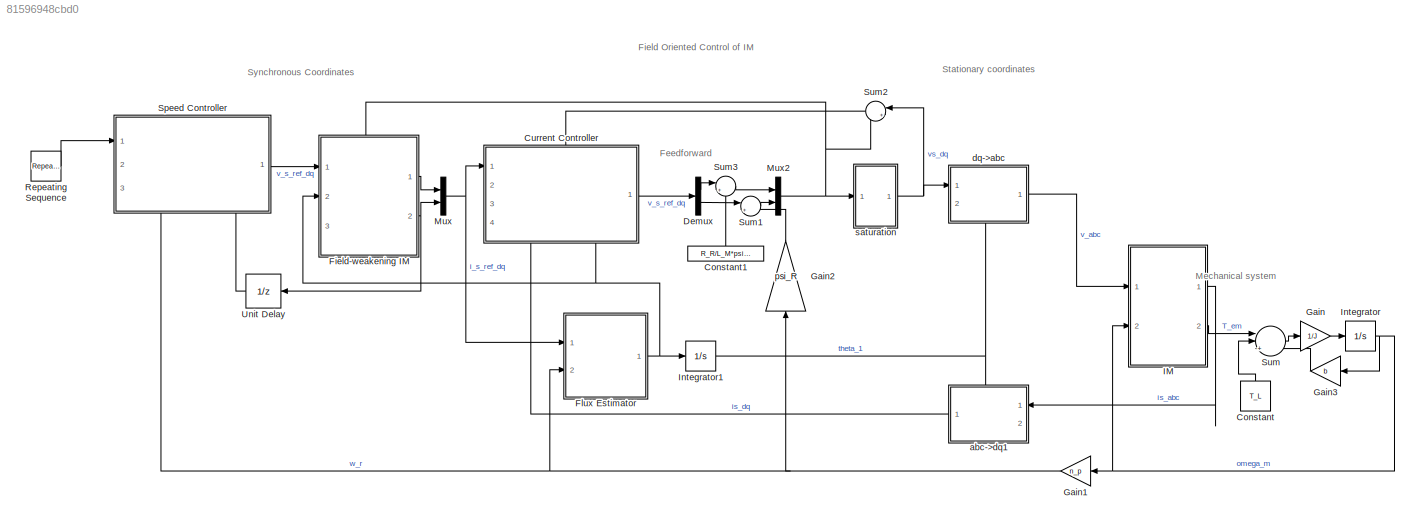
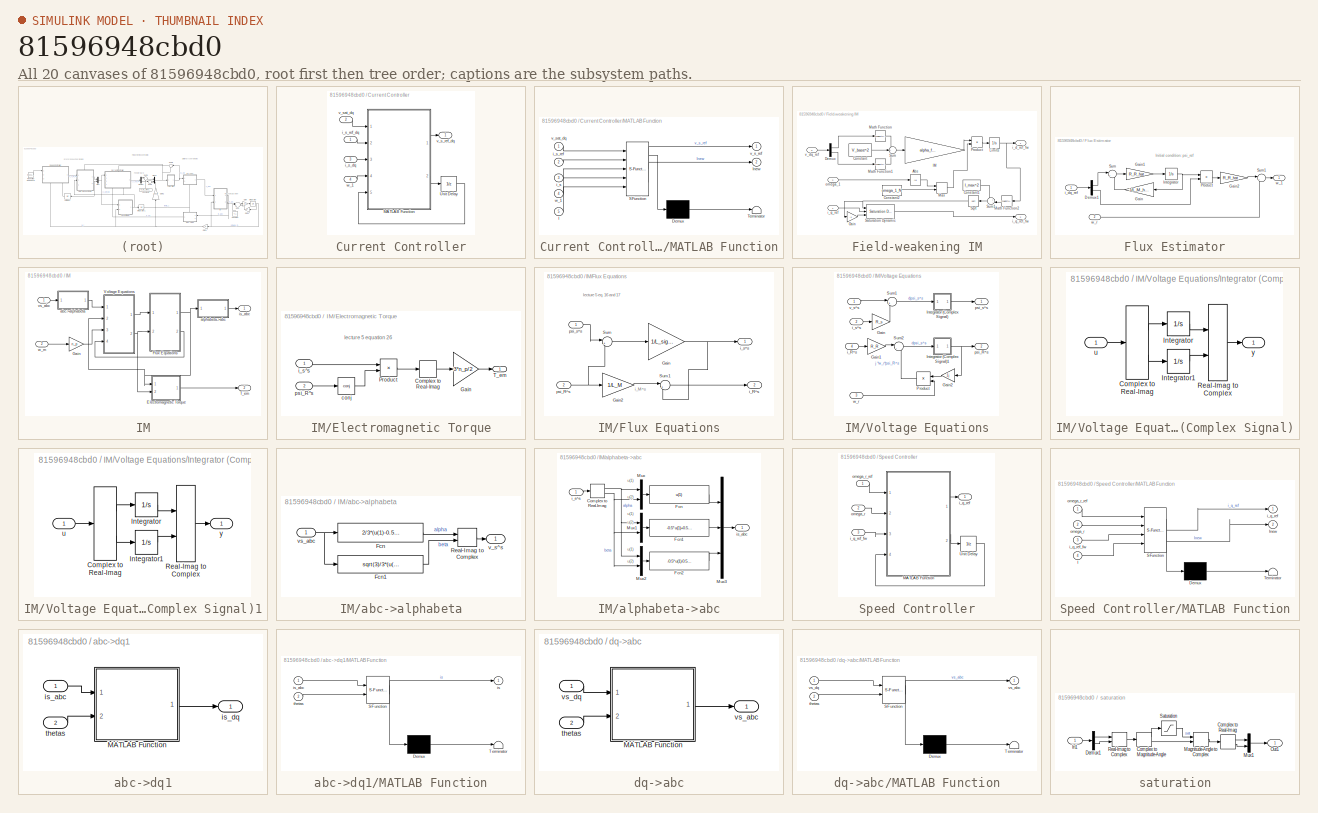
[diagram: thumbnail index - all 20 canvases of the model, root first then tree order]
MODEL slx_81596948cbd0
KIND model
CONFIG AbsTol = 1e-10
CONFIG EnableMultiTasking = off
CONFIG FixedStep = Ts
CONFIG MaxStep = auto
CONFIG MinStep = auto
CONFIG RelTol = 1e-10
CONFIG SampleTimeConstraint = Unconstrained
CONFIG SolverName = FixedStepAuto
CONFIG StartTime = 0.0
CONFIG StopTime = 10
WORKSPACE source: MATLAB code (in-file)
WORKSPACE P_N = 530
WORKSPACE I_N = 1.5
WORKSPACE U_N = 220
WORKSPACE n_N = 4000
WORKSPACE PF_N = 0.9925
WORKSPACE n_p = 2
WORKSPACE V_max = 400
WORKSPACE t_r_ref = 1e-3  (= 0.001)
WORKSPACE J = 0.384e-4*5  (= 0.000192)
WORKSPACE w_N = n_N*2*pi/60  (= 418.879020479)
WORKSPACE psi_R = 20*P_N/(sqrt(2)*pi*n_p*I_N*n_N)
WORKSPACE L_s = 10*sqrt(3)*U_N*sin(acos(PF_N))/(n_p*n_N*pi*I_N)
WORKSPACE R_s = sqrt(3)*U_N*PF_N/(3*I_N)-P_N/(3*I_N^2)
WORKSPACE Ts = 1e-4  (= 0.0001)
WORKSPACE T_L = 0
WORKSPACE t_r = 1e-3  (= 0.001)
WORKSPACE w_BW = log(9)/t_r
WORKSPACE L_s_hat = 0.010  (= 0.01)
WORKSPACE R_s_hat = 4
WORKSPACE R_a = w_BW*L_s_hat - R_s_hat
WORKSPACE ki = w_BW*(R_s_hat+R_a)
WORKSPACE kp = w_BW*L_s_hat
BLOCK [Constant] Constant
  NameLocation = right
  Value = T_L
BLOCK [Constant] Constant1
  NameLocation = right
  Value = R_R/L_M*psi_R
BLOCK [SubSystem] Current Controller
  PortSchema = {"entries":[{"content":{"sides":[{"content":{"connectorIds":["In1"]},"type":"ConnectorPlacement.EquallySpacedRectSide","uuid":"97c548b6-6990-4323-a853-1e64e742285c"},{"content":{"connectorIds":["Out1"],"side":"RIGHT"},"type":"ConnectorPlacement.EquallySpacedRectSide","uuid":"cacb7644-0a67-4de4-9bb2-887734fe331a"},{"content":{"connectorIds":["In2"],"side":"TOP"},"type":"ConnectorPlacement.EquallySp...<+400ch>
  Ports = [4, 1]
  RequestExecContextInheritance = off
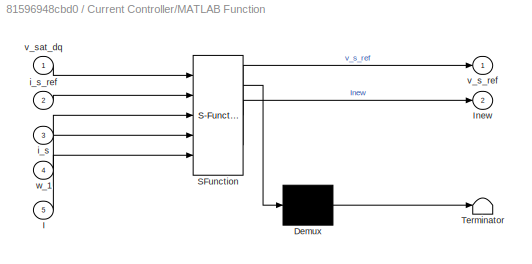
BLOCK [SubSystem] Current Controller/MATLAB Function
  ErrorFcn = Stateflow.Translate.translate
  PermitHierarchicalResolution = ExplicitOnly
  Ports = [5, 2]
  RequestExecContextInheritance = off
  SFBlockType = MATLAB Function
  TreatAsAtomicUnit = on
BLOCK [Demux] Current Controller/MATLAB Function/ Demux 
  Outputs = 1
  Ports = [1, 1]
BLOCK [S-Function] Current Controller/MATLAB Function/ SFunction 
  EnableBusSupport = on
  FunctionName = sf_sfun
  Parameters = L_sigma_hat,R_hat,Ts,w_BW
  PortCounts = [5 3]
  Ports = [5, 3]
  SFcnIsStateOwnerBlock = off
  SFunctionDeploymentMode = off
  Tag = Stateflow S-Function 5
BLOCK [Terminator] Current Controller/MATLAB Function/ Terminator 
BLOCK [Inport] Current Controller/MATLAB Function/I
  Port = 5
BLOCK [Outport] Current Controller/MATLAB Function/Inew
  Port = 2
BLOCK [Inport] Current Controller/MATLAB Function/i_s
  Port = 3
BLOCK [Inport] Current Controller/MATLAB Function/i_s_ref
  Port = 2
BLOCK [Outport] Current Controller/MATLAB Function/v_s_ref
BLOCK [Inport] Current Controller/MATLAB Function/v_sat_dq
BLOCK [Inport] Current Controller/MATLAB Function/w_1
  Port = 4
BLOCK [UnitDelay] Current Controller/Unit Delay
  HasFrameUpgradeWarning = on
  SampleTime = -1
BLOCK [Inport] Current Controller/i_s_dq
  Port = 3
BLOCK [Inport] Current Controller/i_s_ref_dq
BLOCK [Outport] Current Controller/v_s_ref_dq
  PortDimensions = 2
BLOCK [Inport] Current Controller/v_sat_dq
  Port = 2
BLOCK [Inport] Current Controller/w_1
  Port = 4
BLOCK [Demux] Demux
  Outputs = 2
  Ports = [1, 2]
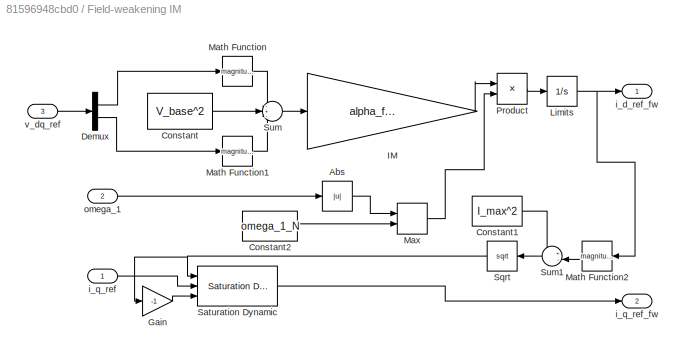
BLOCK [SubSystem] Field-weakening IM
  PortSchema = {"entries":[{"content":{"sides":[{"content":{"connectorIds":["In1","In2"]},"type":"ConnectorPlacement.EquallySpacedRectSide","uuid":"aee381d7-3a71-45d0-966d-7af6601206c5"},{"content":{"connectorIds":["Out1","Out2"],"side":"RIGHT"},"type":"ConnectorPlacement.EquallySpacedRectSide","uuid":"b4f04b7a-b16d-4ae2-8d18-1ccf45d54418"},{"content":{"connectorIds":["In3"],"side":"TOP"},"type":"ConnectorPlacem...<+258ch>
  Ports = [3, 2]
  RequestExecContextInheritance = off
BLOCK [Abs] Field-weakening IM/Abs
  SaturateOnIntegerOverflow = off
BLOCK [Constant] Field-weakening IM/Constant
  Value = V_base^2
BLOCK [Constant] Field-weakening IM/Constant1
  Value = I_max^2
BLOCK [Constant] Field-weakening IM/Constant2
  Value = omega_1_N
BLOCK [Demux] Field-weakening IM/Demux
  Outputs = 2
  Ports = [1, 2]
BLOCK [Gain] Field-weakening IM/Gain
  Gain = -1
BLOCK [Gain] Field-weakening IM/IM
  Gain = alpha_fw/2/L_sigma_hat/V_base
BLOCK [Integrator] Field-weakening IM/Limits
  LimitOutput = on
  LowerSaturationLimit = 0.1*psi_ref/L_M_hat
  Ports = [1, 1]
  UpperSaturationLimit = psi_ref/L_M_hat
BLOCK [Math] Field-weakening IM/Math Function
  Operator = magnitude^2
  Ports = [1, 1]
BLOCK [Math] Field-weakening IM/Math Function1
  Operator = magnitude^2
  Ports = [1, 1]
BLOCK [Math] Field-weakening IM/Math Function2
  Operator = magnitude^2
  Ports = [1, 1]
BLOCK [MinMax] Field-weakening IM/Max
  Function = max
  Inputs = 2
  Ports = [2, 1]
BLOCK [Product] Field-weakening IM/Product
  Inputs = */
  Ports = [2, 1]
BLOCK [Reference] Field-weakening IM/Saturation Dynamic  REF=simulink/Discontinuities/Saturation
Dynamic
  Ports = [3, 1]
  SourceBlock = simulink/Discontinuities/Saturation\nDynamic
  SourceProductBaseCode = SL
  SourceType = Saturation Dynamic
BLOCK [Sqrt] Field-weakening IM/Sqrt
BLOCK [Sum] Field-weakening IM/Sum
  Inputs = -+-
  Ports = [3, 1]
BLOCK [Sum] Field-weakening IM/Sum1
  Inputs = +-|
  Ports = [2, 1]
BLOCK [Outport] Field-weakening IM/i_d_ref_fw
BLOCK [Inport] Field-weakening IM/i_q_ref
BLOCK [Outport] Field-weakening IM/i_q_ref_fw
  Port = 2
BLOCK [Inport] Field-weakening IM/omega_1
  Port = 2
BLOCK [Inport] Field-weakening IM/v_dq_ref
  Port = 3
BLOCK [SubSystem] Flux Estimator
  Ports = [2, 1]
  RequestExecContextInheritance = off
BLOCK [Demux] Flux Estimator/Demux1
  Outputs = 2
  Ports = [1, 2]
BLOCK [Gain] Flux Estimator/Gain
  Gain = 1/L_M_hat
BLOCK [Gain] Flux Estimator/Gain1
  Gain = R_R_hat
BLOCK [Gain] Flux Estimator/Gain2
  Gain = R_R_hat
BLOCK [Integrator] Flux Estimator/Integrator
  InitialCondition = psi_ref
  Ports = [1, 1]
BLOCK [Product] Flux Estimator/Product
  Inputs = /*
  Ports = [2, 1]
BLOCK [Sum] Flux Estimator/Sum
  Inputs = |+-
  Ports = [2, 1]
BLOCK [Sum] Flux Estimator/Sum1
  Inputs = |++
  Ports = [2, 1]
BLOCK [Inport] Flux Estimator/i_dq_ref
BLOCK [Outport] Flux Estimator/w_1
BLOCK [Inport] Flux Estimator/w_r
  Port = 2
BLOCK [Gain] Gain
  Gain = 1/J
BLOCK [Gain] Gain1
  Gain = n_p
BLOCK [Gain] Gain2
  Gain = psi_R
  NameLocation = right
BLOCK [Gain] Gain3
  Gain = b
BLOCK [SubSystem] IM
  Ports = [2, 2]
  RequestExecContextInheritance = off
BLOCK [SubSystem] IM/Electromagnetic Torque
  Ports = [2, 1]
  RequestExecContextInheritance = off
BLOCK [ComplexToRealImag] IM/Electromagnetic Torque/Complex to Real-Imag
  Output = Imag
  Ports = [1, 1]
BLOCK [Gain] IM/Electromagnetic Torque/Gain
  Gain = 3*n_p/2
BLOCK [Product] IM/Electromagnetic Torque/Product
  Ports = [2, 1]
BLOCK [Outport] IM/Electromagnetic Torque/T_em
BLOCK [Math] IM/Electromagnetic Torque/conj
  Operator = conj
  Ports = [1, 1]
BLOCK [Inport] IM/Electromagnetic Torque/i_s^s
BLOCK [Inport] IM/Electromagnetic Torque/psi_R^s
  Port = 2
BLOCK [SubSystem] IM/Flux Equations
  Ports = [2, 2]
  RequestExecContextInheritance = off
BLOCK [Gain] IM/Flux Equations/Gain
  Gain = 1/L_sigma
BLOCK [Gain] IM/Flux Equations/Gain2
  Gain = 1/L_M
BLOCK [Sum] IM/Flux Equations/Sum
  Inputs = |+-
  Ports = [2, 1]
BLOCK [Sum] IM/Flux Equations/Sum1
  Inputs = |+-
  Ports = [2, 1]
BLOCK [Outport] IM/Flux Equations/i_R^s
  Port = 2
BLOCK [Outport] IM/Flux Equations/i_s^s
BLOCK [Inport] IM/Flux Equations/psi_R^s
  Port = 2
BLOCK [Inport] IM/Flux Equations/psi_s^s
BLOCK [Gain] IM/Gain
  Gain = n_p
  OutDataTypeStr = Inherit: Same as input
  ParamDataTypeStr = Inherit: Same as input
  SaturateOnIntegerOverflow = on
BLOCK [Outport] IM/T_em
  Port = 2
BLOCK [SubSystem] IM/Voltage Equations
  Ports = [4, 2]
  RequestExecContextInheritance = off
BLOCK [Gain] IM/Voltage Equations/Gain
  Gain = R_s
BLOCK [Gain] IM/Voltage Equations/Gain1
  Gain = R_R
BLOCK [Gain] IM/Voltage Equations/Gain2
  Gain = 1j
BLOCK [SubSystem] IM/Voltage Equations/Integrator (Complex Signal)
  Ports = [1, 1]
  RequestExecContextInheritance = off
BLOCK [ComplexToRealImag] IM/Voltage Equations/Integrator (Complex Signal)/Complex to Real-Imag
  Ports = [1, 2]
BLOCK [Integrator] IM/Voltage Equations/Integrator (Complex Signal)/Integrator
  InitialCondition = psi_ref
  Ports = [1, 1]
BLOCK [Integrator] IM/Voltage Equations/Integrator (Complex Signal)/Integrator1
  Ports = [1, 1]
BLOCK [RealImagToComplex] IM/Voltage Equations/Integrator (Complex Signal)/Real-Imag to Complex
  Ports = [2, 1]
BLOCK [Inport] IM/Voltage Equations/Integrator (Complex Signal)/u
BLOCK [Outport] IM/Voltage Equations/Integrator (Complex Signal)/y
BLOCK [SubSystem] IM/Voltage Equations/Integrator (Complex Signal)1
  Ports = [1, 1]
  RequestExecContextInheritance = off
BLOCK [ComplexToRealImag] IM/Voltage Equations/Integrator (Complex Signal)1/Complex to Real-Imag
  Ports = [1, 2]
BLOCK [Integrator] IM/Voltage Equations/Integrator (Complex Signal)1/Integrator
  InitialCondition = psi_ref
  Ports = [1, 1]
BLOCK [Integrator] IM/Voltage Equations/Integrator (Complex Signal)1/Integrator1
  Ports = [1, 1]
BLOCK [RealImagToComplex] IM/Voltage Equations/Integrator (Complex Signal)1/Real-Imag to Complex
  Ports = [2, 1]
BLOCK [Inport] IM/Voltage Equations/Integrator (Complex Signal)1/u
BLOCK [Outport] IM/Voltage Equations/Integrator (Complex Signal)1/y
BLOCK [Product] IM/Voltage Equations/Product
  Ports = [2, 1]
  RndMeth = Zero
BLOCK [Sum] IM/Voltage Equations/Sum1
  Inputs = |+-
  Ports = [2, 1]
BLOCK [Sum] IM/Voltage Equations/Sum2
  Inputs = |-+
  Ports = [2, 1]
BLOCK [Inport] IM/Voltage Equations/i_R^s
  Port = 4
BLOCK [Inport] IM/Voltage Equations/i_s^s
  Port = 2
BLOCK [Outport] IM/Voltage Equations/psi_R^s
  Port = 2
BLOCK [Outport] IM/Voltage Equations/psi_s^s
BLOCK [Inport] IM/Voltage Equations/v_s^s
BLOCK [Inport] IM/Voltage Equations/w_r
  Port = 3
BLOCK [SubSystem] IM/abc->alphabeta
  Ports = [1, 1]
  RequestExecContextInheritance = off
BLOCK [Fcn] IM/abc->alphabeta/Fcn
  Expr = 2/3*(u(1)-0.5*u(2)-0.5*u(3))
BLOCK [Fcn] IM/abc->alphabeta/Fcn1
  Expr = sqrt(3)/3*(u(2)-u(3))
BLOCK [RealImagToComplex] IM/abc->alphabeta/Real-Imag to Complex
  Ports = [2, 1]
BLOCK [Outport] IM/abc->alphabeta/v_s^s
BLOCK [Inport] IM/abc->alphabeta/vs_abc
BLOCK [SubSystem] IM/alphabeta->abc
  Ports = [1, 1]
  RequestExecContextInheritance = off
BLOCK [ComplexToRealImag] IM/alphabeta->abc/Complex to Real-Imag
  Ports = [1, 2]
BLOCK [Fcn] IM/alphabeta->abc/Fcn
  Expr = u(1)
BLOCK [Fcn] IM/alphabeta->abc/Fcn1
  Expr = -0.5*u(1)+0.5*sqrt(3)*u(2)
BLOCK [Fcn] IM/alphabeta->abc/Fcn2
  Expr = -0.5*u(1)-0.5*sqrt(3)*u(2)
BLOCK [Mux] IM/alphabeta->abc/Mux
  DisplayOption = bar
  Inputs = 2
  Ports = [2, 1]
BLOCK [Mux] IM/alphabeta->abc/Mux1
  DisplayOption = bar
  Inputs = 2
  Ports = [2, 1]
BLOCK [Mux] IM/alphabeta->abc/Mux2
  DisplayOption = bar
  Inputs = 2
  Ports = [2, 1]
BLOCK [Mux] IM/alphabeta->abc/Mux3
  DisplayOption = bar
  Inputs = 3
  Ports = [3, 1]
BLOCK [Inport] IM/alphabeta->abc/i_s^s
BLOCK [Outport] IM/alphabeta->abc/is_abc
BLOCK [Outport] IM/is_abc
BLOCK [Inport] IM/vs_abc
BLOCK [Inport] IM/w_m
  Port = 2
BLOCK [Integrator] Integrator
  InitialCondition = 1337/n_p
  Ports = [1, 1]
BLOCK [Integrator] Integrator1
  Ports = [1, 1]
BLOCK [Mux] Mux
  DisplayOption = bar
  Inputs = 2
  Ports = [2, 1]
BLOCK [Mux] Mux2
  DisplayOption = bar
  Inputs = 2
  Ports = [2, 1]
BLOCK [Reference] Repeating Sequence  REF=simulink/Sources/Repeating
Sequence
  Ports = [0, 1]
  SourceBlock = simulink/Sources/Repeating\nSequence
  SourceProductBaseCode = SL
  SourceType = Repeating table
BLOCK [SubSystem] Speed Controller
  PortSchema = {"entries":[{"content":{"sides":[{"content":{"connectorIds":["In1"]},"type":"ConnectorPlacement.EquallySpacedRectSide","uuid":"97c548b6-6990-4323-a853-1e64e742285c"},{"content":{"connectorIds":["Out1"],"side":"RIGHT"},"type":"ConnectorPlacement.EquallySpacedRectSide","uuid":"cacb7644-0a67-4de4-9bb2-887734fe331a"},{"content":{"connectorIds":[],"side":"TOP"},"type":"ConnectorPlacement.EquallySpacedR...<+395ch>
  Ports = [3, 1]
  RequestExecContextInheritance = off
BLOCK [SubSystem] Speed Controller/MATLAB Function
  ErrorFcn = Stateflow.Translate.translate
  PermitHierarchicalResolution = ExplicitOnly
  Ports = [4, 2]
  RequestExecContextInheritance = off
  SFBlockType = MATLAB Function
  TreatAsAtomicUnit = on
BLOCK [Demux] Speed Controller/MATLAB Function/ Demux 
  Outputs = 1
  Ports = [1, 1]
BLOCK [S-Function] Speed Controller/MATLAB Function/ SFunction 
  EnableBusSupport = on
  FunctionName = sf_sfun
  Parameters = I_max,J_hat,Ts,b_hat,n_p,psi_R_hat,w_BWs
  PortCounts = [4 3]
  Ports = [4, 3]
  SFcnIsStateOwnerBlock = off
  SFunctionDeploymentMode = off
  Tag = Stateflow S-Function 2
BLOCK [Terminator] Speed Controller/MATLAB Function/ Terminator 
BLOCK [Inport] Speed Controller/MATLAB Function/I
  Port = 4
BLOCK [Outport] Speed Controller/MATLAB Function/Inew
  Port = 2
BLOCK [Outport] Speed Controller/MATLAB Function/i_q_ref
BLOCK [Inport] Speed Controller/MATLAB Function/i_q_ref_fw
  Port = 3
BLOCK [Inport] Speed Controller/MATLAB Function/omega_r
  Port = 2
BLOCK [Inport] Speed Controller/MATLAB Function/omega_r_ref
BLOCK [UnitDelay] Speed Controller/Unit Delay
  HasFrameUpgradeWarning = on
  SampleTime = -1
BLOCK [Outport] Speed Controller/i_q_ref
  PortDimensions = 2
BLOCK [Inport] Speed Controller/i_q_ref_fw
  Port = 3
BLOCK [Inport] Speed Controller/omega_r
  Port = 2
BLOCK [Inport] Speed Controller/omega_r_ref
BLOCK [Sum] Sum
  Inputs = ||+--
  Ports = [3, 1]
BLOCK [Sum] Sum1
  Inputs = |++
  Ports = [2, 1]
BLOCK [Sum] Sum2
  Inputs = |+-
  Ports = [2, 1]
BLOCK [Sum] Sum3
  Inputs = |+-
  Ports = [2, 1]
BLOCK [UnitDelay] Unit Delay
  HasFrameUpgradeWarning = on
  InitialCondition = I_max
  NameLocation = top
  SampleTime = -1
BLOCK [SubSystem] abc->dq1
  PortSchema = {"entries":[{"content":{"sides":[{"content":{"connectorIds":["In1"]},"type":"ConnectorPlacement.EquallySpacedRectSide","uuid":"c3863cce-4a98-427c-9e63-89298f679a84"},{"content":{"connectorIds":["Out1"],"side":"RIGHT"},"type":"ConnectorPlacement.EquallySpacedRectSide","uuid":"ae3c4991-ab62-4114-9bee-e9a7348a29ce"},{"content":{"connectorIds":["In2"],"side":"TOP"},"type":"ConnectorPlacement.EquallySp...<+389ch>
  Ports = [2, 1]
  RequestExecContextInheritance = off
BLOCK [SubSystem] abc->dq1/MATLAB Function
  ErrorFcn = Stateflow.Translate.translate
  PermitHierarchicalResolution = ExplicitOnly
  Ports = [2, 1]
  RequestExecContextInheritance = off
  SFBlockType = MATLAB Function
  TreatAsAtomicUnit = on
BLOCK [Demux] abc->dq1/MATLAB Function/ Demux 
  Outputs = 1
  Ports = [1, 1]
BLOCK [S-Function] abc->dq1/MATLAB Function/ SFunction 
  EnableBusSupport = on
  FunctionName = sf_sfun
  PortCounts = [2 2]
  Ports = [2, 2]
  SFcnIsStateOwnerBlock = off
  SFunctionDeploymentMode = off
  Tag = Stateflow S-Function 3
BLOCK [Terminator] abc->dq1/MATLAB Function/ Terminator 
BLOCK [Outport] abc->dq1/MATLAB Function/is
BLOCK [Inport] abc->dq1/MATLAB Function/is_abc
BLOCK [Inport] abc->dq1/MATLAB Function/thetas
  Port = 2
BLOCK [Inport] abc->dq1/is_abc
BLOCK [Outport] abc->dq1/is_dq
BLOCK [Inport] abc->dq1/thetas
  Port = 2
BLOCK [SubSystem] dq->abc
  PortSchema = {"entries":[{"content":{"sides":[{"content":{"connectorIds":["In1"]},"type":"ConnectorPlacement.EquallySpacedRectSide","uuid":"c3863cce-4a98-427c-9e63-89298f679a84"},{"content":{"connectorIds":["Out1"],"side":"RIGHT"},"type":"ConnectorPlacement.EquallySpacedRectSide","uuid":"ae3c4991-ab62-4114-9bee-e9a7348a29ce"},{"content":{"connectorIds":[],"side":"TOP"},"type":"ConnectorPlacement.EquallySpacedR...<+389ch>
  Ports = [2, 1]
  RequestExecContextInheritance = off
BLOCK [SubSystem] dq->abc/MATLAB Function
  ErrorFcn = Stateflow.Translate.translate
  PermitHierarchicalResolution = ExplicitOnly
  Ports = [2, 1]
  RequestExecContextInheritance = off
  SFBlockType = MATLAB Function
  TreatAsAtomicUnit = on
BLOCK [Demux] dq->abc/MATLAB Function/ Demux 
  Outputs = 1
  Ports = [1, 1]
BLOCK [S-Function] dq->abc/MATLAB Function/ SFunction 
  EnableBusSupport = on
  FunctionName = sf_sfun
  PortCounts = [2 2]
  Ports = [2, 2]
  SFcnIsStateOwnerBlock = off
  SFunctionDeploymentMode = off
  Tag = Stateflow S-Function 1
BLOCK [Terminator] dq->abc/MATLAB Function/ Terminator 
BLOCK [Inport] dq->abc/MATLAB Function/thetas
  Port = 2
BLOCK [Outport] dq->abc/MATLAB Function/vs_abc
BLOCK [Inport] dq->abc/MATLAB Function/vs_dq
BLOCK [Inport] dq->abc/thetas
  Port = 2
BLOCK [Outport] dq->abc/vs_abc
BLOCK [Inport] dq->abc/vs_dq
BLOCK [SubSystem] saturation
  Ports = [1, 1]
  RequestExecContextInheritance = off
BLOCK [ComplexToMagnitudeAngle] saturation/Complex to Magnitude-Angle
  Ports = [1, 2]
BLOCK [ComplexToRealImag] saturation/Complex to Real-Imag
  Ports = [1, 2]
BLOCK [Demux] saturation/Demux1
  Outputs = 2
  Ports = [1, 2]
BLOCK [Inport] saturation/In1
BLOCK [MagnitudeAngleToComplex] saturation/Magnitude-Angle to Complex
  Ports = [2, 1]
BLOCK [Mux] saturation/Mux1
  DisplayOption = bar
  Inputs = 2
  Ports = [2, 1]
BLOCK [Outport] saturation/Out1
BLOCK [RealImagToComplex] saturation/Real-Imag to Complex
  Ports = [2, 1]
BLOCK [Saturate] saturation/Saturation
  LowerLimit = 0
  UpperLimit = V_LL*sqrt(2)/sqrt(3)
ANNOTATION (root): Field Oriented Control of IM
ANNOTATION (root): Feedforward
ANNOTATION (root): Mechanical system
ANNOTATION (root): Stationary coordinates
ANNOTATION (root): Synchronous Coordinates
ANNOTATION Flux Estimator: Initial condition: psi_ref
ANNOTATION IM/Electromagnetic Torque: lecture 5 equation 26
ANNOTATION IM/Flux Equations: i_M^s
ANNOTATION IM/Flux Equations: lecture 5 eq. 16 and 17
ANNOTATION IM/alphabeta->abc: u(1)
ANNOTATION IM/alphabeta->abc: u(2)
LINE Constant1:1 -> Sum3:2
LINE Constant:1 -> Sum:2
LINE Current Controller/MATLAB Function:1 -> Current Controller/v_s_ref_dq:1
LINE Current Controller/MATLAB Function:2 -> Current Controller/Unit Delay:1
LINE Current Controller/Unit Delay:1 -> Current Controller/MATLAB Function:5
LINE Current Controller/i_s_dq:1 -> Current Controller/MATLAB Function:3
LINE Current Controller/i_s_ref_dq:1 -> Current Controller/MATLAB Function:2
LINE Current Controller/v_sat_dq:1 -> Current Controller/MATLAB Function:1
LINE Current Controller/w_1:1 -> Current Controller/MATLAB Function:4
LINE Current Controller:1 -> Demux:1
LINE Demux:1 -> Sum3:1
LINE Demux:2 -> Sum1:1
LINE Field-weakening IM/Abs:1 -> Field-weakening IM/Max:1
LINE Field-weakening IM/Constant1:1 -> Field-weakening IM/Sum1:1
LINE Field-weakening IM/Constant2:1 -> Field-weakening IM/Max:2
LINE Field-weakening IM/Constant:1 -> Field-weakening IM/Sum:2
LINE Field-weakening IM/Demux:1 -> Field-weakening IM/Math Function:1
LINE Field-weakening IM/Demux:2 -> Field-weakening IM/Math Function1:1
LINE Field-weakening IM/Gain:1 -> Field-weakening IM/Saturation Dynamic:3
LINE Field-weakening IM/IM:1 -> Field-weakening IM/Product:1
NET Field-weakening IM/Limits:1 -> Field-weakening IM/Math Function2:1, Field-weakening IM/i_d_ref_fw:1
LINE Field-weakening IM/Math Function1:1 -> Field-weakening IM/Sum:3
LINE Field-weakening IM/Math Function2:1 -> Field-weakening IM/Sum1:2
LINE Field-weakening IM/Math Function:1 -> Field-weakening IM/Sum:1
LINE Field-weakening IM/Max:1 -> Field-weakening IM/Product:2
LINE Field-weakening IM/Product:1 -> Field-weakening IM/Limits:1
LINE Field-weakening IM/Saturation Dynamic:1 -> Field-weakening IM/i_q_ref_fw:1
NET Field-weakening IM/Sqrt:1 -> Field-weakening IM/Gain:1, Field-weakening IM/Saturation Dynamic:1
LINE Field-weakening IM/Sum1:1 -> Field-weakening IM/Sqrt:1
LINE Field-weakening IM/Sum:1 -> Field-weakening IM/IM:1
LINE Field-weakening IM/i_q_ref:1 -> Field-weakening IM/Saturation Dynamic:2
LINE Field-weakening IM/omega_1:1 -> Field-weakening IM/Abs:1
LINE Field-weakening IM/v_dq_ref:1 -> Field-weakening IM/Demux:1
LINE Field-weakening IM:1 -> Mux:1
NET Field-weakening IM:2 -> Mux:2, Unit Delay:1
LINE Flux Estimator/Demux1:1 -> Flux Estimator/Sum:1
LINE Flux Estimator/Demux1:2 -> Flux Estimator/Product:2
LINE Flux Estimator/Gain1:1 -> Flux Estimator/Integrator:1
LINE Flux Estimator/Gain2:1 -> Flux Estimator/Sum1:1
LINE Flux Estimator/Gain:1 -> Flux Estimator/Sum:2
NET Flux Estimator/Integrator:1 -> Flux Estimator/Gain:1, Flux Estimator/Product:1
LINE Flux Estimator/Product:1 -> Flux Estimator/Gain2:1
LINE Flux Estimator/Sum1:1 -> Flux Estimator/w_1:1
LINE Flux Estimator/Sum:1 -> Flux Estimator/Gain1:1
LINE Flux Estimator/i_dq_ref:1 -> Flux Estimator/Demux1:1
LINE Flux Estimator/w_r:1 -> Flux Estimator/Sum1:2
NET Flux Estimator:1 -> Current Controller:4, Field-weakening IM:2, Integrator1:1
NET Gain1:1 -> Flux Estimator:2, Gain2:1, Speed Controller:2
LINE Gain2:1 -> Sum1:2
LINE Gain3:1 -> Sum:3
LINE Gain:1 -> Integrator:1
LINE IM/Electromagnetic Torque/Complex to Real-Imag:1 -> IM/Electromagnetic Torque/Gain:1
LINE IM/Electromagnetic Torque/Gain:1 -> IM/Electromagnetic Torque/T_em:1
LINE IM/Electromagnetic Torque/Product:1 -> IM/Electromagnetic Torque/Complex to Real-Imag:1
LINE IM/Electromagnetic Torque/conj:1 -> IM/Electromagnetic Torque/Product:2
LINE IM/Electromagnetic Torque/i_s^s:1 -> IM/Electromagnetic Torque/Product:1
LINE IM/Electromagnetic Torque/psi_R^s:1 -> IM/Electromagnetic Torque/conj:1
LINE IM/Electromagnetic Torque:1 -> IM/T_em:1
LINE IM/Flux Equations/Gain2:1 -> IM/Flux Equations/Sum1:1
NET IM/Flux Equations/Gain:1 -> IM/Flux Equations/Sum1:2, IM/Flux Equations/i_s^s:1
LINE IM/Flux Equations/Sum1:1 -> IM/Flux Equations/i_R^s:1
LINE IM/Flux Equations/Sum:1 -> IM/Flux Equations/Gain:1
NET IM/Flux Equations/psi_R^s:1 -> IM/Flux Equations/Gain2:1, IM/Flux Equations/Sum:2
LINE IM/Flux Equations/psi_s^s:1 -> IM/Flux Equations/Sum:1
NET IM/Flux Equations:1 -> IM/Electromagnetic Torque:1, IM/Voltage Equations:2, IM/alphabeta->abc:1
LINE IM/Flux Equations:2 -> IM/Voltage Equations:4
LINE IM/Gain:1 -> IM/Voltage Equations:3
LINE IM/Voltage Equations/Gain1:1 -> IM/Voltage Equations/Sum2:1
LINE IM/Voltage Equations/Gain2:1 -> IM/Voltage Equations/Product:1
LINE IM/Voltage Equations/Gain:1 -> IM/Voltage Equations/Sum1:2
LINE IM/Voltage Equations/Integrator (Complex Signal)/Complex to Real-Imag:1 -> IM/Voltage Equations/Integrator (Complex Signal)/Integrator:1
LINE IM/Voltage Equations/Integrator (Complex Signal)/Complex to Real-Imag:2 -> IM/Voltage Equations/Integrator (Complex Signal)/Integrator1:1
LINE IM/Voltage Equations/Integrator (Complex Signal)/Integrator1:1 -> IM/Voltage Equations/Integrator (Complex Signal)/Real-Imag to Complex:2
LINE IM/Voltage Equations/Integrator (Complex Signal)/Integrator:1 -> IM/Voltage Equations/Integrator (Complex Signal)/Real-Imag to Complex:1
LINE IM/Voltage Equations/Integrator (Complex Signal)/Real-Imag to Complex:1 -> IM/Voltage Equations/Integrator (Complex Signal)/y:1
LINE IM/Voltage Equations/Integrator (Complex Signal)/u:1 -> IM/Voltage Equations/Integrator (Complex Signal)/Complex to Real-Imag:1
LINE IM/Voltage Equations/Integrator (Complex Signal)1/Complex to Real-Imag:1 -> IM/Voltage Equations/Integrator (Complex Signal)1/Integrator:1
LINE IM/Voltage Equations/Integrator (Complex Signal)1/Complex to Real-Imag:2 -> IM/Voltage Equations/Integrator (Complex Signal)1/Integrator1:1
LINE IM/Voltage Equations/Integrator (Complex Signal)1/Integrator1:1 -> IM/Voltage Equations/Integrator (Complex Signal)1/Real-Imag to Complex:2
LINE IM/Voltage Equations/Integrator (Complex Signal)1/Integrator:1 -> IM/Voltage Equations/Integrator (Complex Signal)1/Real-Imag to Complex:1
LINE IM/Voltage Equations/Integrator (Complex Signal)1/Real-Imag to Complex:1 -> IM/Voltage Equations/Integrator (Complex Signal)1/y:1
LINE IM/Voltage Equations/Integrator (Complex Signal)1/u:1 -> IM/Voltage Equations/Integrator (Complex Signal)1/Complex to Real-Imag:1
NET IM/Voltage Equations/Integrator (Complex Signal)1:1 -> IM/Voltage Equations/Gain2:1, IM/Voltage Equations/psi_R^s:1
LINE IM/Voltage Equations/Integrator (Complex Signal):1 -> IM/Voltage Equations/psi_s^s:1
LINE IM/Voltage Equations/Product:1 -> IM/Voltage Equations/Sum2:2
LINE IM/Voltage Equations/Sum1:1 -> IM/Voltage Equations/Integrator (Complex Signal):1
LINE IM/Voltage Equations/Sum2:1 -> IM/Voltage Equations/Integrator (Complex Signal)1:1
LINE IM/Voltage Equations/i_R^s:1 -> IM/Voltage Equations/Gain1:1
LINE IM/Voltage Equations/i_s^s:1 -> IM/Voltage Equations/Gain:1
LINE IM/Voltage Equations/v_s^s:1 -> IM/Voltage Equations/Sum1:1
LINE IM/Voltage Equations/w_r:1 -> IM/Voltage Equations/Product:2
LINE IM/Voltage Equations:1 -> IM/Flux Equations:1
NET IM/Voltage Equations:2 -> IM/Electromagnetic Torque:2, IM/Flux Equations:2
LINE IM/abc->alphabeta/Fcn1:1 -> IM/abc->alphabeta/Real-Imag to Complex:2
LINE IM/abc->alphabeta/Fcn:1 -> IM/abc->alphabeta/Real-Imag to Complex:1
LINE IM/abc->alphabeta/Real-Imag to Complex:1 -> IM/abc->alphabeta/v_s^s:1
NET IM/abc->alphabeta/vs_abc:1 -> IM/abc->alphabeta/Fcn1:1, IM/abc->alphabeta/Fcn:1
LINE IM/abc->alphabeta:1 -> IM/Voltage Equations:1
NET IM/alphabeta->abc/Complex to Real-Imag:1 -> IM/alphabeta->abc/Mux1:1, IM/alphabeta->abc/Mux2:1, IM/alphabeta->abc/Mux:1
NET IM/alphabeta->abc/Complex to Real-Imag:2 -> IM/alphabeta->abc/Mux1:2, IM/alphabeta->abc/Mux2:2, IM/alphabeta->abc/Mux:2
LINE IM/alphabeta->abc/Fcn1:1 -> IM/alphabeta->abc/Mux3:2
LINE IM/alphabeta->abc/Fcn2:1 -> IM/alphabeta->abc/Mux3:3
LINE IM/alphabeta->abc/Fcn:1 -> IM/alphabeta->abc/Mux3:1
LINE IM/alphabeta->abc/Mux1:1 -> IM/alphabeta->abc/Fcn1:1
LINE IM/alphabeta->abc/Mux2:1 -> IM/alphabeta->abc/Fcn2:1
LINE IM/alphabeta->abc/Mux3:1 -> IM/alphabeta->abc/is_abc:1
LINE IM/alphabeta->abc/Mux:1 -> IM/alphabeta->abc/Fcn:1
LINE IM/alphabeta->abc/i_s^s:1 -> IM/alphabeta->abc/Complex to Real-Imag:1
LINE IM/alphabeta->abc:1 -> IM/is_abc:1
LINE IM/vs_abc:1 -> IM/abc->alphabeta:1
LINE IM/w_m:1 -> IM/Gain:1
LINE IM:1 -> abc->dq1:1
LINE IM:2 -> Sum:1
NET Integrator1:1 -> abc->dq1:2, dq->abc:2
NET Integrator:1 -> Gain1:1, Gain3:1, IM:2
NET Mux2:1 -> Field-weakening IM:3, Sum2:2, saturation:1
NET Mux:1 -> Current Controller:1, Flux Estimator:1
LINE Repeating Sequence:1 -> Speed Controller:1
LINE Speed Controller/MATLAB Function:1 -> Speed Controller/i_q_ref:1
LINE Speed Controller/MATLAB Function:2 -> Speed Controller/Unit Delay:1
LINE Speed Controller/Unit Delay:1 -> Speed Controller/MATLAB Function:4
LINE Speed Controller/i_q_ref_fw:1 -> Speed Controller/MATLAB Function:3
LINE Speed Controller/omega_r:1 -> Speed Controller/MATLAB Function:2
LINE Speed Controller/omega_r_ref:1 -> Speed Controller/MATLAB Function:1
LINE Speed Controller:1 -> Field-weakening IM:1
LINE Sum1:1 -> Mux2:2
LINE Sum2:1 -> Current Controller:2
LINE Sum3:1 -> Mux2:1
LINE Sum:1 -> Gain:1
LINE Unit Delay:1 -> Speed Controller:3
LINE abc->dq1/MATLAB Function:1 -> abc->dq1/is_dq:1
LINE abc->dq1/is_abc:1 -> abc->dq1/MATLAB Function:1
LINE abc->dq1/thetas:1 -> abc->dq1/MATLAB Function:2
LINE abc->dq1:1 -> Current Controller:3
LINE dq->abc/MATLAB Function:1 -> dq->abc/vs_abc:1
LINE dq->abc/thetas:1 -> dq->abc/MATLAB Function:2
LINE dq->abc/vs_dq:1 -> dq->abc/MATLAB Function:1
LINE dq->abc:1 -> IM:1
LINE saturation/Complex to Magnitude-Angle:1 -> saturation/Saturation:1
LINE saturation/Complex to Magnitude-Angle:2 -> saturation/Magnitude-Angle to Complex:2
LINE saturation/Complex to Real-Imag:1 -> saturation/Mux1:1
LINE saturation/Complex to Real-Imag:2 -> saturation/Mux1:2
LINE saturation/Demux1:1 -> saturation/Real-Imag to Complex:1
LINE saturation/Demux1:2 -> saturation/Real-Imag to Complex:2
LINE saturation/In1:1 -> saturation/Demux1:1
LINE saturation/Magnitude-Angle to Complex:1 -> saturation/Complex to Real-Imag:1
LINE saturation/Mux1:1 -> saturation/Out1:1
LINE saturation/Real-Imag to Complex:1 -> saturation/Complex to Magnitude-Angle:1
LINE saturation/Saturation:1 -> saturation/Magnitude-Angle to Complex:1
NET saturation:1 -> Sum2:1, dq->abc:1
note: NET lines group one-source signal fan-out (src -> all destinations, sorted); 1:1 wires keep LINE
CHART dq->abc/MATLAB Function states=1 transitions=1
  STATE_LABEL 'eML_blk_kernel()'
  STATE_LABEL 'SCRIPT:\nfunction vs_abc = dq_abc(vs_dq, thetas)\n%#codegen\n\n% voltage in synchronous coordinates:\n vd = vs_dq(1); vq = vs_dq(2); \nvs_dq = [vd;vq];\n\n% coordinate transformation and Space-vector transformation \nT_alphabeta = [cos(thetas), -sin(thetas); sin(thetas), cos(thetas)];\nT_23 = [1, 0; -1/2, sqrt(3)/2; -1/2, -sqrt(3)/2];\nvs_abc = T_23*T_alphabeta*vs_dq;   % Complete this'
CHART Speed Controller/MATLAB Function states=1 transitions=1
  STATE_LABEL 'eML_blk_kernel()'
  STATE_LABEL 'SCRIPT:\nfunction [i_q_ref, Inew] = sc(omega_r_ref, omega_r, i_q_ref_fw,I, w_BWs, psi_R_hat, J_hat, Ts, b_hat, I_max, n_p)\n%#codegen\n\n%% Current controller \n% Gains\nkps = 2*J_hat*w_BWs/(3*n_p^2*psi_R_hat); % notes psi_R_hat is psi_ref\nkis = w_BWs^2*2*J_hat/(3*n_p^2*psi_R_hat); % notes\nba = 2*J_hat/(3*n_p^2*psi_R_hat)*(w_BWs-b_hat/J_hat); % notes\ne = omega_r_ref - omega_r;\ni_q_ref_nom = kps*e+kis*I-...<+178ch>'
CHART abc->dq1/MATLAB Function states=1 transitions=1
  STATE_LABEL 'eML_blk_kernel()'
  STATE_LABEL 'SCRIPT:\nfunction is = abc_dq(is_abc, thetas)\n%#codegen\n\n% Phase currents\nia = is_abc(1); ib = is_abc(2); ic = is_abc(3); \nis_abc = [ia;ib;ic];\n% Space-vector transformation and coordinate transformation\nT_dq = [cos(thetas), sin(thetas); -sin(thetas), cos(thetas)];\nT_32 = [2/3, -1/3, -1/3; 0, 1/sqrt(3), -1/sqrt(3)];\nis = T_dq*T_32*is_abc;   % Complete this'
CHART Current Controller/MATLAB Function states=1 transitions=1
  STATE_LABEL 'eML_blk_kernel()'
  STATE_LABEL 'SCRIPT:\nfunction [v_s_ref, Inew] = cc(v_sat_dq,i_s_ref, i_s, w_1, I, w_BW, R_hat, L_sigma_hat, Ts)\n%#codegen\n\n%% Current controller \n% Gains\nkp = w_BW*L_sigma_hat; % L7 p15\nki = w_BW^2*L_sigma_hat; % L7 p15\nRa = w_BW*L_sigma_hat - R_hat; % L7 p14\n\n% Voltage reference in synchronous coordinates\ni_s = i_s(1)+ 1i*i_s(2);\ni_s_ref = i_s_ref(1)+ 1i*i_s_ref(2);\ne = i_s_ref - i_s;\n% L7 p13 and p15 (c for ...<+310ch>'
CHART  states=0 transitions=0
CHART  states=0 transitions=0
CHART  states=0 transitions=0
CHART  states=0 transitions=0
